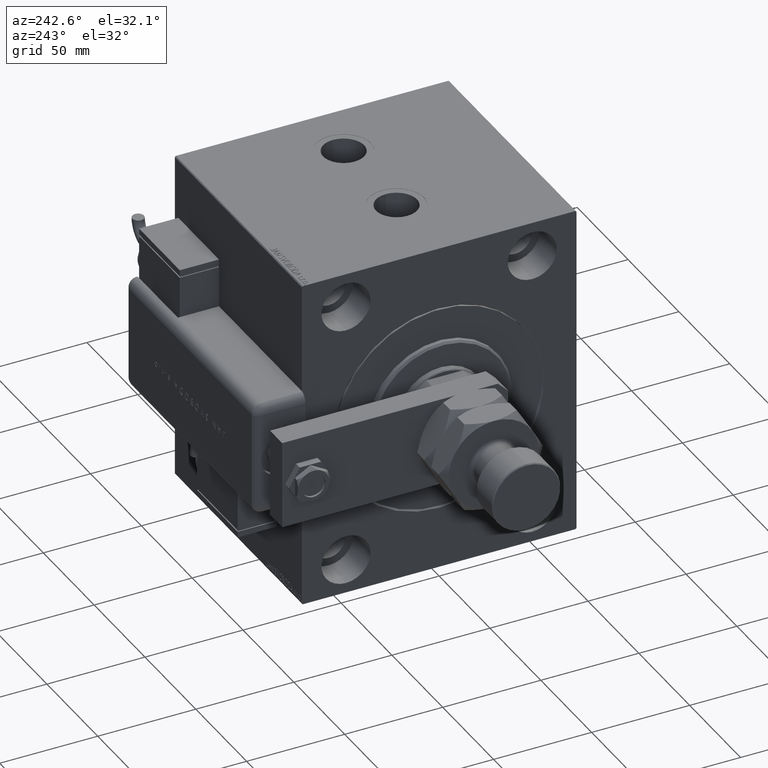
[diagram: clean part render]
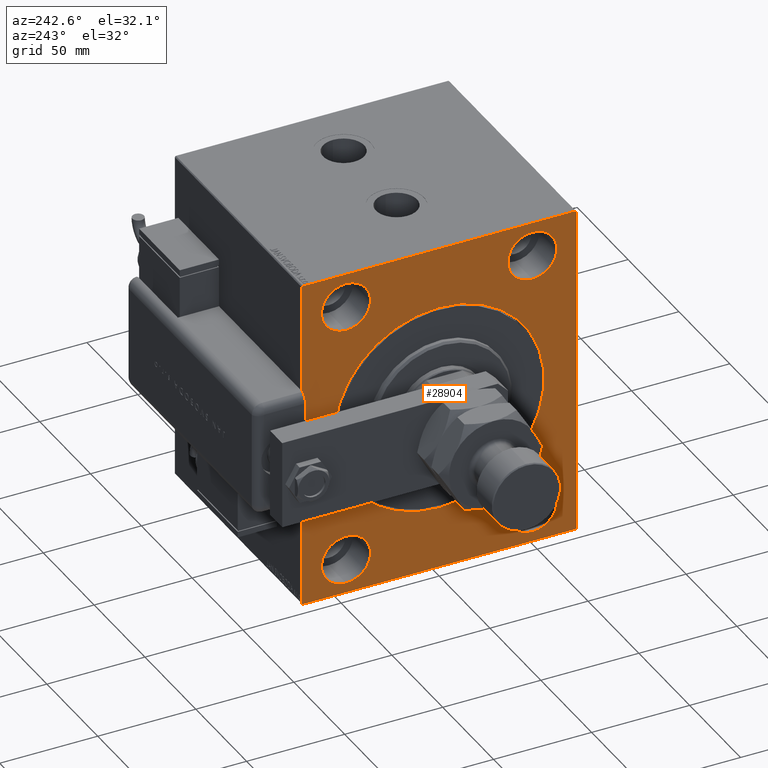
[diagram: same view with one face highlighted and labeled with its STEP entity id]
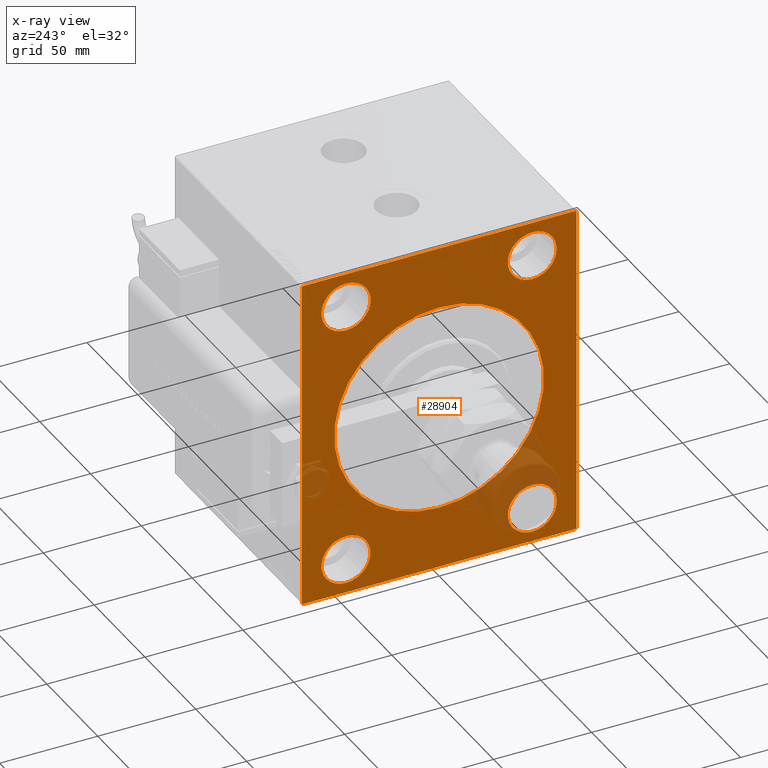
[diagram: x-ray of the same camera — body ghosted, the highlighted face saturated]
A machine part, auxiliary view. The second image highlights one B-rep face of the part: STEP entity #28904.
The next image is the same camera in x-ray: the body ghosted, the highlighted face saturated — about 9% of this face is hidden behind the body in this view.
In plain terms, the highlighted planar face has unit normal (1, 0, 0).
Its self-contained STEP definition (entity closure, byte-faithful):
#450 = ORIENTED_EDGE ( 'NONE', *, *, #2182, .F. ) ;
#620 = VECTOR ( 'NONE', #26979, 1000.000000000000000 ) ;
#1198 = ORIENTED_EDGE ( 'NONE', *, *, #36217, .F. ) ;
#1814 = LINE ( 'NONE', #48812, #45288 ) ;
#2182 = EDGE_CURVE ( 'NONE', #30800, #21549, #40358, .T. ) ;
#2861 = LINE ( 'NONE', #56600, #13314 ) ;
#3136 = AXIS2_PLACEMENT_3D ( 'NONE', #51759, #43057, #9150 ) ;
#3262 = CARTESIAN_POINT ( 'NONE',  ( 0.000000000000000000, 70.00000000000002842, -84.50000000000004263 ) ) ;
#3366 = AXIS2_PLACEMENT_3D ( 'NONE', #49853, #49551, #20656 ) ;
#3379 = EDGE_CURVE ( 'NONE', #19811, #60063, #13012, .T. ) ;
#3534 = ORIENTED_EDGE ( 'NONE', *, *, #56014, .F. ) ;
#3604 = DIRECTION ( 'NONE',  ( -1.000000000000000000, 0.000000000000000000, 0.000000000000000000 ) ) ;
#3987 = CARTESIAN_POINT ( 'NONE',  ( 0.000000000000000000, 47.50000000000000711, -55.00000000000000711 ) ) ;
#4039 = ORIENTED_EDGE ( 'NONE', *, *, #18870, .F. ) ;
#4158 = FACE_OUTER_BOUND ( 'NONE', #36053, .T. ) ;
#4395 = VECTOR ( 'NONE', #35434, 1000.000000000000114 ) ;
#4453 = VERTEX_POINT ( 'NONE', #11702 ) ;
#5595 = ORIENTED_EDGE ( 'NONE', *, *, #15441, .F. ) ;
#7263 = LINE ( 'NONE', #36507, #55184 ) ;
#8438 = EDGE_CURVE ( 'NONE', #30800, #48008, #43926, .T. ) ;
#8525 = DIRECTION ( 'NONE',  ( 0.000000000000000000, 0.000000000000000000, 1.000000000000000000 ) ) ;
#8755 = AXIS2_PLACEMENT_3D ( 'NONE', #14710, #29005, #10953 ) ;
#9082 = EDGE_CURVE ( 'NONE', #4453, #57662, #21071, .T. ) ;
#9150 = DIRECTION ( 'NONE',  ( 0.000000000000000000, 0.000000000000000000, -1.000000000000000000 ) ) ;
#9205 = CARTESIAN_POINT ( 'NONE',  ( 0.000000000000000000, -47.49999999999997868, 67.50000000000000000 ) ) ;
#9859 = CARTESIAN_POINT ( 'NONE',  ( 0.000000000000000000, 6.551860375438343048E-15, -53.50000000000002842 ) ) ;
#9935 = CARTESIAN_POINT ( 'NONE',  ( 0.000000000000000000, 47.50000000000000711, -80.00000000000000000 ) ) ;
#10348 = DIRECTION ( 'NONE',  ( -0.000000000000000000, -0.7071067811865574537, 0.7071067811865376918 ) ) ;
#10953 = DIRECTION ( 'NONE',  ( 0.000000000000000000, 0.000000000000000000, -1.000000000000000000 ) ) ;
#11174 = CARTESIAN_POINT ( 'NONE',  ( 0.000000000000000000, 47.50000000000000711, 80.00000000000001421 ) ) ;
#11702 = CARTESIAN_POINT ( 'NONE',  ( 0.000000000000000000, -47.49999999999999289, -55.00000000000000711 ) ) ;
#12598 = VERTEX_POINT ( 'NONE', #43091 ) ;
#12625 = FACE_BOUND ( 'NONE', #55310, .T. ) ;
#12691 = LINE ( 'NONE', #56204, #620 ) ;
#13012 = CIRCLE ( 'NONE', #59743, 12.50000000000001066 ) ;
#13021 = ORIENTED_EDGE ( 'NONE', *, *, #46025, .T. ) ;
#13231 = DIRECTION ( 'NONE',  ( -1.000000000000000000, 0.000000000000000000, 0.000000000000000000 ) ) ;
#13314 = VECTOR ( 'NONE', #21902, 1000.000000000000000 ) ;
#13494 = VERTEX_POINT ( 'NONE', #37746 ) ;
#13583 = ORIENTED_EDGE ( 'NONE', *, *, #54604, .F. ) ;
#14421 = CARTESIAN_POINT ( 'NONE',  ( 0.000000000000000000, -47.49999999999999289, -67.50000000000000000 ) ) ;
#14456 = EDGE_CURVE ( 'NONE', #37206, #48008, #2861, .T. ) ;
#14570 = VERTEX_POINT ( 'NONE', #9935 ) ;
#14710 = CARTESIAN_POINT ( 'NONE',  ( 0.000000000000000000, 0.000000000000000000, 0.000000000000000000 ) ) ;
#15154 = EDGE_CURVE ( 'NONE', #57662, #4453, #53103, .T. ) ;
#15441 = EDGE_CURVE ( 'NONE', #14570, #20549, #22350, .T. ) ;
#16115 = CARTESIAN_POINT ( 'NONE',  ( 0.000000000000000000, -69.99999999999998579, -85.00000000000002842 ) ) ;
#18162 = DIRECTION ( 'NONE',  ( 0.000000000000000000, 0.000000000000000000, 1.000000000000000000 ) ) ;
#18335 = CIRCLE ( 'NONE', #3366, 53.50000000000002842 ) ;
#18835 = DIRECTION ( 'NONE',  ( 0.000000000000000000, 0.000000000000000000, 1.000000000000000000 ) ) ;
#18870 = EDGE_CURVE ( 'NONE', #41617, #23214, #1814, .T. ) ;
#19811 = VERTEX_POINT ( 'NONE', #40300 ) ;
#20549 = VERTEX_POINT ( 'NONE', #3987 ) ;
#20656 = DIRECTION ( 'NONE',  ( 0.000000000000000000, 0.000000000000000000, -1.000000000000000000 ) ) ;
#21071 = CIRCLE ( 'NONE', #48877, 12.49999999999999645 ) ;
#21257 = ORIENTED_EDGE ( 'NONE', *, *, #3379, .F. ) ;
#21549 = VERTEX_POINT ( 'NONE', #51603 ) ;
#21803 = VERTEX_POINT ( 'NONE', #9859 ) ;
#21902 = DIRECTION ( 'NONE',  ( 0.000000000000000000, 0.000000000000000000, -1.000000000000000000 ) ) ;
#22350 = CIRCLE ( 'NONE', #26303, 12.49999999999999645 ) ;
#22919 = DIRECTION ( 'NONE',  ( 0.000000000000000000, 0.000000000000000000, 1.000000000000000000 ) ) ;
#23214 = VERTEX_POINT ( 'NONE', #58107 ) ;
#23739 = CARTESIAN_POINT ( 'NONE',  ( 0.000000000000000000, 47.50000000000000711, -67.50000000000000000 ) ) ;
#24791 = CARTESIAN_POINT ( 'NONE',  ( 0.000000000000000000, 47.50000000000000711, -67.50000000000000000 ) ) ;
#25148 = AXIS2_PLACEMENT_3D ( 'NONE', #46802, #13231, #18835 ) ;
#26303 = AXIS2_PLACEMENT_3D ( 'NONE', #23739, #46726, #47665 ) ;
#26574 = CARTESIAN_POINT ( 'NONE',  ( 0.000000000000000000, -47.49999999999997868, 55.00000000000000000 ) ) ;
#26745 = DIRECTION ( 'NONE',  ( 0.000000000000000000, 0.000000000000000000, 1.000000000000000000 ) ) ;
#26915 = FACE_BOUND ( 'NONE', #51196, .T. ) ;
#26979 = DIRECTION ( 'NONE',  ( -0.000000000000000000, 0.7071067811865378028, -0.7071067811865573427 ) ) ;
#27823 = FACE_BOUND ( 'NONE', #28032, .T. ) ;
#28032 = EDGE_LOOP ( 'NONE', ( #13583, #48155 ) ) ;
#28871 = VECTOR ( 'NONE', #49067, 1000.000000000000000 ) ;
#28904 = ADVANCED_FACE ( 'NONE', ( #55227, #12625, #26915, #27823, #42428, #4158 ), #33125, .F. ) ;
#29005 = DIRECTION ( 'NONE',  ( 1.000000000000000000, 0.000000000000000000, 0.000000000000000000 ) ) ;
#30800 = VERTEX_POINT ( 'NONE', #45923 ) ;
#31131 = CARTESIAN_POINT ( 'NONE',  ( 0.000000000000000000, 47.50000000000000711, 55.00000000000000000 ) ) ;
#32153 = ORIENTED_EDGE ( 'NONE', *, *, #8438, .T. ) ;
#32175 = CARTESIAN_POINT ( 'NONE',  ( 0.000000000000000000, 47.50000000000000711, 67.50000000000000000 ) ) ;
#33125 = PLANE ( 'NONE',  #3136 ) ;
#33416 = EDGE_CURVE ( 'NONE', #41617, #21549, #59323, .T. ) ;
#34088 = EDGE_LOOP ( 'NONE', ( #39440, #58892 ) ) ;
#34266 = CARTESIAN_POINT ( 'NONE',  ( 0.000000000000000000, -69.99999999999998579, -84.49999999999998579 ) ) ;
#34442 = DIRECTION ( 'NONE',  ( 0.000000000000000000, 0.000000000000000000, 1.000000000000000000 ) ) ;
#35410 = VERTEX_POINT ( 'NONE', #56814 ) ;
#35431 = ORIENTED_EDGE ( 'NONE', *, *, #36576, .T. ) ;
#35434 = DIRECTION ( 'NONE',  ( -0.000000000000000000, 0.7071067811865474617, 0.7071067811865474617 ) ) ;
#36053 = EDGE_LOOP ( 'NONE', ( #60448, #53645, #38365, #46351, #4039, #46748, #450, #32153 ) ) ;
#36217 = EDGE_CURVE ( 'NONE', #60063, #19811, #44166, .T. ) ;
#36507 = CARTESIAN_POINT ( 'NONE',  ( 0.000000000000000000, 70.00000000000001421, 85.00000000000000000 ) ) ;
#36576 = EDGE_CURVE ( 'NONE', #12598, #21803, #18335, .T. ) ;
#36690 = CARTESIAN_POINT ( 'NONE',  ( 0.000000000000000000, -47.49999999999997868, 67.50000000000000000 ) ) ;
#37060 = EDGE_CURVE ( 'NONE', #37206, #13494, #59056, .T. ) ;
#37206 = VERTEX_POINT ( 'NONE', #45933 ) ;
#37678 = VERTEX_POINT ( 'NONE', #31131 ) ;
#37746 = CARTESIAN_POINT ( 'NONE',  ( 0.000000000000000000, -69.49999999999997158, 84.99999999999998579 ) ) ;
#38365 = ORIENTED_EDGE ( 'NONE', *, *, #39025, .F. ) ;
#38840 = AXIS2_PLACEMENT_3D ( 'NONE', #24791, #43434, #34442 ) ;
#39025 = EDGE_CURVE ( 'NONE', #35410, #13494, #7263, .T. ) ;
#39440 = ORIENTED_EDGE ( 'NONE', *, *, #9082, .F. ) ;
#40300 = CARTESIAN_POINT ( 'NONE',  ( 0.000000000000000000, -47.49999999999997868, 80.00000000000001421 ) ) ;
#40358 = LINE ( 'NONE', #16115, #28871 ) ;
#40780 = CIRCLE ( 'NONE', #38840, 12.49999999999999645 ) ;
#41617 = VERTEX_POINT ( 'NONE', #45711 ) ;
#41813 = CARTESIAN_POINT ( 'NONE',  ( 0.000000000000000000, -47.49999999999999289, -67.50000000000000000 ) ) ;
#41925 = EDGE_CURVE ( 'NONE', #35410, #23214, #12691, .T. ) ;
#42428 = FACE_BOUND ( 'NONE', #34088, .T. ) ;
#42971 = CIRCLE ( 'NONE', #25148, 12.50000000000001066 ) ;
#43057 = DIRECTION ( 'NONE',  ( 1.000000000000000000, 0.000000000000000000, 0.000000000000000000 ) ) ;
#43091 = CARTESIAN_POINT ( 'NONE',  ( 0.000000000000000000, 0.000000000000000000, 53.50000000000002842 ) ) ;
#43332 = DIRECTION ( 'NONE',  ( -1.000000000000000000, 0.000000000000000000, 0.000000000000000000 ) ) ;
#43434 = DIRECTION ( 'NONE',  ( -1.000000000000000000, 0.000000000000000000, 0.000000000000000000 ) ) ;
#43805 = CARTESIAN_POINT ( 'NONE',  ( 0.000000000000000000, -69.99999999999998579, 84.49999999999995737 ) ) ;
#43926 = LINE ( 'NONE', #52959, #47869 ) ;
#44166 = CIRCLE ( 'NONE', #52106, 12.50000000000001066 ) ;
#44170 = VECTOR ( 'NONE', #50281, 1000.000000000000000 ) ;
#44757 = DIRECTION ( 'NONE',  ( 0.000000000000000000, -8.163404592832031500E-17, 1.000000000000000000 ) ) ;
#45288 = VECTOR ( 'NONE', #44757, 1000.000000000000000 ) ;
#45584 = DIRECTION ( 'NONE',  ( -1.000000000000000000, 0.000000000000000000, 0.000000000000000000 ) ) ;
#45711 = CARTESIAN_POINT ( 'NONE',  ( 0.000000000000000000, 70.00000000000002842, -84.50000000000004263 ) ) ;
#45923 = CARTESIAN_POINT ( 'NONE',  ( 0.000000000000000000, -69.49999999999994316, -85.00000000000002842 ) ) ;
#45933 = CARTESIAN_POINT ( 'NONE',  ( 0.000000000000000000, -69.99999999999998579, 84.49999999999995737 ) ) ;
#46025 = EDGE_CURVE ( 'NONE', #21803, #12598, #48515, .T. ) ;
#46351 = ORIENTED_EDGE ( 'NONE', *, *, #41925, .T. ) ;
#46464 = DIRECTION ( 'NONE',  ( -1.000000000000000000, 0.000000000000000000, 0.000000000000000000 ) ) ;
#46726 = DIRECTION ( 'NONE',  ( -1.000000000000000000, 0.000000000000000000, 0.000000000000000000 ) ) ;
#46748 = ORIENTED_EDGE ( 'NONE', *, *, #33416, .T. ) ;
#46802 = CARTESIAN_POINT ( 'NONE',  ( 0.000000000000000000, 47.50000000000000711, 67.50000000000000000 ) ) ;
#47665 = DIRECTION ( 'NONE',  ( 0.000000000000000000, 0.000000000000000000, 1.000000000000000000 ) ) ;
#47869 = VECTOR ( 'NONE', #10348, 999.9999999999998863 ) ;
#48008 = VERTEX_POINT ( 'NONE', #34266 ) ;
#48155 = ORIENTED_EDGE ( 'NONE', *, *, #57842, .F. ) ;
#48515 = CIRCLE ( 'NONE', #8755, 53.50000000000002842 ) ;
#48812 = CARTESIAN_POINT ( 'NONE',  ( 0.000000000000000000, 70.00000000000002842, -85.00000000000001421 ) ) ;
#48877 = AXIS2_PLACEMENT_3D ( 'NONE', #14421, #43332, #18162 ) ;
#49067 = DIRECTION ( 'NONE',  ( 0.000000000000000000, 1.000000000000000000, 9.912705577010325549E-17 ) ) ;
#49551 = DIRECTION ( 'NONE',  ( 1.000000000000000000, 0.000000000000000000, 0.000000000000000000 ) ) ;
#49853 = CARTESIAN_POINT ( 'NONE',  ( 0.000000000000000000, 0.000000000000000000, 0.000000000000000000 ) ) ;
#50073 = DIRECTION ( 'NONE',  ( -1.000000000000000000, 0.000000000000000000, 0.000000000000000000 ) ) ;
#50281 = DIRECTION ( 'NONE',  ( 0.000000000000000000, -0.7071067811865769936, -0.7071067811865181518 ) ) ;
#50558 = CARTESIAN_POINT ( 'NONE',  ( 0.000000000000000000, -47.49999999999999289, -80.00000000000000000 ) ) ;
#50676 = CIRCLE ( 'NONE', #61606, 12.50000000000001066 ) ;
#51131 = AXIS2_PLACEMENT_3D ( 'NONE', #41813, #45584, #51467 ) ;
#51196 = EDGE_LOOP ( 'NONE', ( #21257, #1198 ) ) ;
#51467 = DIRECTION ( 'NONE',  ( 0.000000000000000000, 0.000000000000000000, 1.000000000000000000 ) ) ;
#51603 = CARTESIAN_POINT ( 'NONE',  ( 0.000000000000000000, 69.50000000000001421, -85.00000000000001421 ) ) ;
#51759 = CARTESIAN_POINT ( 'NONE',  ( 0.000000000000000000, 0.000000000000000000, 0.000000000000000000 ) ) ;
#52106 = AXIS2_PLACEMENT_3D ( 'NONE', #36690, #50073, #26745 ) ;
#52959 = CARTESIAN_POINT ( 'NONE',  ( 0.000000000000000000, -69.49999999999994316, -85.00000000000002842 ) ) ;
#53103 = CIRCLE ( 'NONE', #51131, 12.49999999999999645 ) ;
#53645 = ORIENTED_EDGE ( 'NONE', *, *, #37060, .T. ) ;
#54604 = EDGE_CURVE ( 'NONE', #59392, #37678, #50676, .T. ) ;
#55184 = VECTOR ( 'NONE', #55757, 1000.000000000000000 ) ;
#55227 = FACE_BOUND ( 'NONE', #55895, .T. ) ;
#55310 = EDGE_LOOP ( 'NONE', ( #3534, #5595 ) ) ;
#55757 = DIRECTION ( 'NONE',  ( 0.000000000000000000, -1.000000000000000000, -9.912705577010325549E-17 ) ) ;
#55895 = EDGE_LOOP ( 'NONE', ( #35431, #13021 ) ) ;
#56014 = EDGE_CURVE ( 'NONE', #20549, #14570, #40780, .T. ) ;
#56204 = CARTESIAN_POINT ( 'NONE',  ( 0.000000000000000000, 69.49999999999998579, 85.00000000000000000 ) ) ;
#56600 = CARTESIAN_POINT ( 'NONE',  ( 0.000000000000000000, -69.99999999999998579, 84.99999999999998579 ) ) ;
#56814 = CARTESIAN_POINT ( 'NONE',  ( 0.000000000000000000, 69.49999999999998579, 85.00000000000000000 ) ) ;
#57662 = VERTEX_POINT ( 'NONE', #50558 ) ;
#57842 = EDGE_CURVE ( 'NONE', #37678, #59392, #42971, .T. ) ;
#58107 = CARTESIAN_POINT ( 'NONE',  ( 0.000000000000000000, 70.00000000000001421, 84.49999999999995737 ) ) ;
#58892 = ORIENTED_EDGE ( 'NONE', *, *, #15154, .F. ) ;
#59056 = LINE ( 'NONE', #43805, #4395 ) ;
#59323 = LINE ( 'NONE', #3262, #44170 ) ;
#59392 = VERTEX_POINT ( 'NONE', #11174 ) ;
#59743 = AXIS2_PLACEMENT_3D ( 'NONE', #9205, #3604, #22919 ) ;
#60063 = VERTEX_POINT ( 'NONE', #26574 ) ;
#60448 = ORIENTED_EDGE ( 'NONE', *, *, #14456, .F. ) ;
#61606 = AXIS2_PLACEMENT_3D ( 'NONE', #32175, #46464, #8525 ) ;